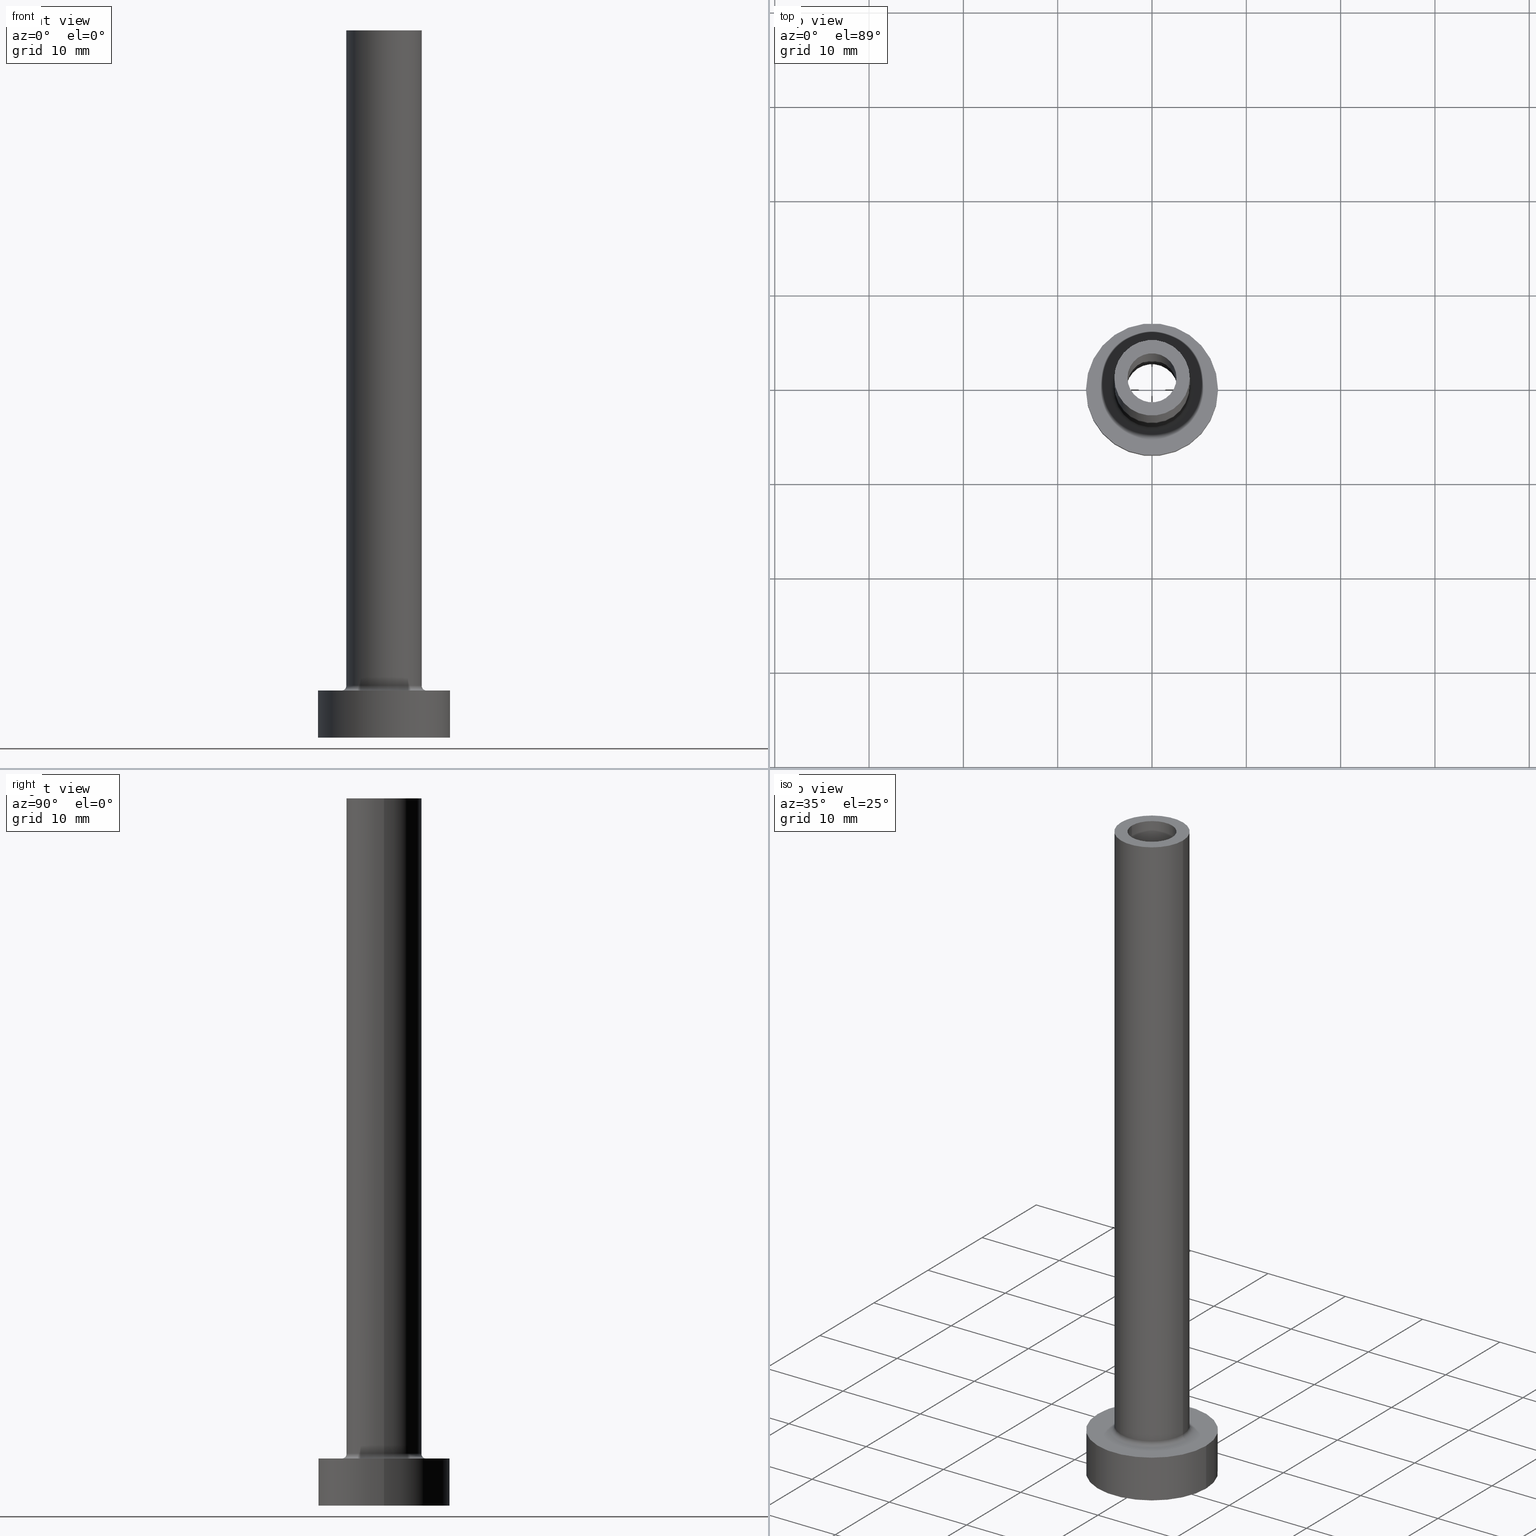
[diagram: canonical four-view strip — front | top / right | iso, engineering-drawing reading convention]
A machine part, canonical four-view strip (front | top / right | iso — engineering-drawing reading convention). The complete STEP part file that produces these views, byte-faithful:
ISO-10303-21;
HEADER;
FILE_DESCRIPTION (( 'STEP AP203' ),
    '1' );
FILE_NAME ('d480.STEP',
    '2023-02-13T10:12:34',
    ( '' ),
    ( '' ),
    'SwSTEP 2.0',
    'SolidWorks 2019',
    '' );
FILE_SCHEMA (( 'CONFIG_CONTROL_DESIGN' ));
ENDSEC;

DATA;
#1 = CARTESIAN_POINT ( 'NONE',  ( 0.000000000000000000, 0.000000000000000000, 75.00000000000001421 ) ) ;
#2 =( NAMED_UNIT ( * ) PLANE_ANGLE_UNIT ( ) SI_UNIT ( $, .RADIAN. ) );
#3 = ADVANCED_FACE ( 'NONE', ( #131, #60 ), #173, .T. ) ;
#4 = PERSON_AND_ORGANIZATION ( #189, #361 ) ;
#5 = CIRCLE ( 'NONE', #337, 2.750000000000000000 ) ;
#6 = DIRECTION ( 'NONE',  ( -0.000000000000000000, -0.000000000000000000, -1.000000000000000000 ) ) ;
#7 = ADVANCED_FACE ( 'NONE', ( #313 ), #453, .F. ) ;
#8 = DIRECTION ( 'NONE',  ( 1.000000000000000000, 0.000000000000000000, 0.000000000000000000 ) ) ;
#9 = ORIENTED_EDGE ( 'NONE', *, *, #304, .T. ) ;
#10 = CYLINDRICAL_SURFACE ( 'NONE', #377, 2.750000000000000000 ) ;
#11 = CIRCLE ( 'NONE', #396, 4.000000000000000000 ) ;
#12 = EDGE_LOOP ( 'NONE', ( #370, #205 ) ) ;
#13 = DIRECTION ( 'NONE',  ( 1.000000000000000000, 0.000000000000000000, 0.000000000000000000 ) ) ;
#14 = DIRECTION ( 'NONE',  ( 1.000000000000000000, 0.000000000000000000, 0.000000000000000000 ) ) ;
#15 = ORIENTED_EDGE ( 'NONE', *, *, #135, .T. ) ;
#16 = CARTESIAN_POINT ( 'NONE',  ( 0.000000000000000000, 0.000000000000000000, 0.000000000000000000 ) ) ;
#17 = CARTESIAN_POINT ( 'NONE',  ( -4.000000000000000000, 0.000000000000000000, 75.00000000000001421 ) ) ;
#18 = EDGE_CURVE ( 'NONE', #26, #166, #73, .T. ) ;
#19 = VERTEX_POINT ( 'NONE', #225 ) ;
#20 = PERSON_AND_ORGANIZATION ( #189, #361 ) ;
#21 = DIRECTION ( 'NONE',  ( -0.000000000000000000, -0.000000000000000000, -1.000000000000000000 ) ) ;
#22 = AXIS2_PLACEMENT_3D ( 'NONE', #460, #39, #188 ) ;
#23 = DATE_AND_TIME ( #202, #41 ) ;
#24 = FACE_OUTER_BOUND ( 'NONE', #235, .T. ) ;
#25 = ORIENTED_EDGE ( 'NONE', *, *, #279, .T. ) ;
#26 = VERTEX_POINT ( 'NONE', #217 ) ;
#27 = PERSON_AND_ORGANIZATION_ROLE ( 'design_supplier' ) ;
#28 = DESIGN_CONTEXT ( 'detailed design', #340, 'design' ) ;
#29 = CIRCLE ( 'NONE', #240, 2.600000000000000089 ) ;
#30 = PRODUCT_DEFINITION_SHAPE ( 'NONE', 'NONE',  #170 ) ;
#31 = ORIENTED_EDGE ( 'NONE', *, *, #130, .T. ) ;
#32 = DIRECTION ( 'NONE',  ( 0.000000000000000000, 0.000000000000000000, 1.000000000000000000 ) ) ;
#33 = DIRECTION ( 'NONE',  ( 0.000000000000000000, 0.000000000000000000, 1.000000000000000000 ) ) ;
#34 = CARTESIAN_POINT ( 'NONE',  ( -7.000000000000000000, 0.000000000000000000, 0.000000000000000000 ) ) ;
#35 = AXIS2_PLACEMENT_3D ( 'NONE', #434, #364, #42 ) ;
#36 = LOCAL_TIME ( 11, 12, 34.00000000000000000, #106 ) ;
#37 = CYLINDRICAL_SURFACE ( 'NONE', #446, 4.000000000000000000 ) ;
#38 = CC_DESIGN_PERSON_AND_ORGANIZATION_ASSIGNMENT ( #132, #349, ( #233 ) ) ;
#39 = DIRECTION ( 'NONE',  ( 0.000000000000000000, 0.000000000000000000, 1.000000000000000000 ) ) ;
#40 = VECTOR ( 'NONE', #409, 1000.000000000000000 ) ;
#41 = LOCAL_TIME ( 11, 12, 34.00000000000000000, #52 ) ;
#42 = DIRECTION ( 'NONE',  ( -1.000000000000000000, 0.000000000000000000, 0.000000000000000000 ) ) ;
#43 = AXIS2_PLACEMENT_3D ( 'NONE', #291, #362, #224 ) ;
#44 = ORIENTED_EDGE ( 'NONE', *, *, #67, .T. ) ;
#45 = PLANE ( 'NONE',  #54 ) ;
#46 = DIRECTION ( 'NONE',  ( 0.000000000000000000, 0.000000000000000000, 1.000000000000000000 ) ) ;
#47 = VECTOR ( 'NONE', #339, 1000.000000000000000 ) ;
#48 = ORIENTED_EDGE ( 'NONE', *, *, #324, .T. ) ;
#49 = DIRECTION ( 'NONE',  ( 0.000000000000000000, 0.000000000000000000, 1.000000000000000000 ) ) ;
#50 = ADVANCED_FACE ( 'NONE', ( #142 ), #262, .T. ) ;
#51 = ORIENTED_EDGE ( 'NONE', *, *, #415, .T. ) ;
#52 = COORDINATED_UNIVERSAL_TIME_OFFSET ( 1, 0, .AHEAD. ) ;
#53 = PLANE ( 'NONE',  #196 ) ;
#54 = AXIS2_PLACEMENT_3D ( 'NONE', #400, #325, #219 ) ;
#55 = EDGE_LOOP ( 'NONE', ( #119, #365, #9, #228 ) ) ;
#56 = APPLICATION_PROTOCOL_DEFINITION ( 'international standard', 'config_control_design', 1994, #340 ) ;
#57 = DIRECTION ( 'NONE',  ( 1.000000000000000000, 0.000000000000000000, 0.000000000000000000 ) ) ;
#58 = AXIS2_PLACEMENT_3D ( 'NONE', #442, #380, #97 ) ;
#59 = EDGE_CURVE ( 'NONE', #382, #26, #254, .T. ) ;
#60 = FACE_OUTER_BOUND ( 'NONE', #272, .T. ) ;
#61 = EDGE_LOOP ( 'NONE', ( #197, #314 ) ) ;
#62 = CC_DESIGN_PERSON_AND_ORGANIZATION_ASSIGNMENT ( #330, #129, ( #388 ) ) ;
#63 = VERTEX_POINT ( 'NONE', #34 ) ;
#64 = DIRECTION ( 'NONE',  ( 0.000000000000000000, 0.000000000000000000, 1.000000000000000000 ) ) ;
#65 = CIRCLE ( 'NONE', #177, 2.750000000000000000 ) ;
#66 = LOCAL_TIME ( 11, 12, 34.00000000000000000, #406 ) ;
#67 = EDGE_CURVE ( 'NONE', #348, #345, #246, .T. ) ;
#68 = ORIENTED_EDGE ( 'NONE', *, *, #288, .T. ) ;
#69 = PERSON_AND_ORGANIZATION ( #189, #361 ) ;
#70 = AXIS2_PLACEMENT_3D ( 'NONE', #99, #381, #77 ) ;
#71 = FACE_OUTER_BOUND ( 'NONE', #309, .T. ) ;
#72 = CARTESIAN_POINT ( 'NONE',  ( 0.000000000000000000, 0.000000000000000000, 5.000000000000000000 ) ) ;
#73 = LINE ( 'NONE', #428, #146 ) ;
#74 = CIRCLE ( 'NONE', #149, 0.5000000000000004441 ) ;
#75 = EDGE_CURVE ( 'NONE', #19, #63, #248, .T. ) ;
#76 = CARTESIAN_POINT ( 'NONE',  ( 0.000000000000000000, 0.000000000000000000, 5.500000000000005329 ) ) ;
#77 = DIRECTION ( 'NONE',  ( -1.000000000000000000, 0.000000000000000000, 0.000000000000000000 ) ) ;
#78 = SHAPE_DEFINITION_REPRESENTATION ( #30, #316 ) ;
#79 =( NAMED_UNIT ( * ) SI_UNIT ( $, .STERADIAN. ) SOLID_ANGLE_UNIT ( ) );
#80 = AXIS2_PLACEMENT_3D ( 'NONE', #322, #148, #435 ) ;
#81 = FACE_OUTER_BOUND ( 'NONE', #154, .T. ) ;
#82 = ADVANCED_FACE ( 'NONE', ( #300 ), #183, .F. ) ;
#83 = ORIENTED_EDGE ( 'NONE', *, *, #304, .F. ) ;
#84 = FACE_OUTER_BOUND ( 'NONE', #405, .T. ) ;
#85 = ORIENTED_EDGE ( 'NONE', *, *, #354, .F. ) ;
#86 = CARTESIAN_POINT ( 'NONE',  ( 4.000000000000000000, 4.898587196589412829E-16, 75.00000000000001421 ) ) ;
#87 = ORIENTED_EDGE ( 'NONE', *, *, #103, .T. ) ;
#88 = ADVANCED_FACE ( 'NONE', ( #297, #290 ), #45, .F. ) ;
#89 = ORIENTED_EDGE ( 'NONE', *, *, #194, .F. ) ;
#90 = PERSON_AND_ORGANIZATION_ROLE ( 'creator' ) ;
#91 = APPROVAL ( #306, 'NEUR�EN�' ) ;
#92 = DIRECTION ( 'NONE',  ( 0.000000000000000000, 0.000000000000000000, 1.000000000000000000 ) ) ;
#93 = DATE_AND_TIME ( #408, #151 ) ;
#94 = CARTESIAN_POINT ( 'NONE',  ( 0.000000000000000000, 0.000000000000000000, 30.00000000000001421 ) ) ;
#95 = ADVANCED_FACE ( 'NONE', ( #195 ), #417, .F. ) ;
#96 = ORIENTED_EDGE ( 'NONE', *, *, #130, .F. ) ;
#97 = DIRECTION ( 'NONE',  ( 1.000000000000000000, 0.000000000000000000, 0.000000000000000000 ) ) ;
#98 = CIRCLE ( 'NONE', #251, 2.750000000000000000 ) ;
#99 = CARTESIAN_POINT ( 'NONE',  ( 0.000000000000000000, 0.000000000000000000, 37.77817459305203585 ) ) ;
#100 = ORIENTED_EDGE ( 'NONE', *, *, #429, .T. ) ;
#101 = DIRECTION ( 'NONE',  ( 0.000000000000000000, 0.000000000000000000, -1.000000000000000000 ) ) ;
#102 = CARTESIAN_POINT ( 'NONE',  ( 0.000000000000000000, 0.000000000000000000, 0.000000000000000000 ) ) ;
#103 = EDGE_CURVE ( 'NONE', #345, #348, #191, .T. ) ;
#104 = CIRCLE ( 'NONE', #295, 4.000000000000000000 ) ;
#105 = ORIENTED_EDGE ( 'NONE', *, *, #204, .T. ) ;
#106 = COORDINATED_UNIVERSAL_TIME_OFFSET ( 1, 0, .AHEAD. ) ;
#107 = CARTESIAN_POINT ( 'NONE',  ( 0.000000000000000000, 0.000000000000000000, 0.000000000000000000 ) ) ;
#108 = DIRECTION ( 'NONE',  ( 0.000000000000000000, 0.000000000000000000, -1.000000000000000000 ) ) ;
#109 = ADVANCED_FACE ( 'NONE', ( #84 ), #37, .T. ) ;
#110 = DIRECTION ( 'NONE',  ( -0.000000000000000000, -0.000000000000000000, -1.000000000000000000 ) ) ;
#111 = DIRECTION ( 'NONE',  ( -1.000000000000000000, 0.000000000000000000, 0.000000000000000000 ) ) ;
#112 = DIRECTION ( 'NONE',  ( 1.000000000000000000, 0.000000000000000000, 0.000000000000000000 ) ) ;
#113 = CLOSED_SHELL ( 'NONE', ( #360, #7, #263, #109, #50, #448, #3, #384, #461, #237, #95, #153, #88, #82 ) ) ;
#114 = COORDINATED_UNIVERSAL_TIME_OFFSET ( 1, 0, .AHEAD. ) ;
#115 = AXIS2_PLACEMENT_3D ( 'NONE', #292, #227, #111 ) ;
#116 = DIRECTION ( 'NONE',  ( -1.000000000000000000, 0.000000000000000000, 0.000000000000000000 ) ) ;
#117 = ORIENTED_EDGE ( 'NONE', *, *, #163, .T. ) ;
#118 = DIRECTION ( 'NONE',  ( 0.000000000000000000, 0.000000000000000000, -1.000000000000000000 ) ) ;
#119 = ORIENTED_EDGE ( 'NONE', *, *, #204, .F. ) ;
#120 = DIRECTION ( 'NONE',  ( 1.000000000000000000, 0.000000000000000000, 0.000000000000000000 ) ) ;
#121 = CC_DESIGN_DATE_AND_TIME_ASSIGNMENT ( #23, #335, ( #170 ) ) ;
#122 = VERTEX_POINT ( 'NONE', #439 ) ;
#123 = DIRECTION ( 'NONE',  ( 1.000000000000000000, 0.000000000000000000, 0.000000000000000000 ) ) ;
#124 = CIRCLE ( 'NONE', #167, 7.000000000000000000 ) ;
#125 = ORIENTED_EDGE ( 'NONE', *, *, #186, .F. ) ;
#126 = APPROVAL_ROLE ( '' ) ;
#127 = CARTESIAN_POINT ( 'NONE',  ( 0.000000000000000000, 0.000000000000000000, 5.000000000000000000 ) ) ;
#128 = DIRECTION ( 'NONE',  ( 0.000000000000000000, 0.000000000000000000, 1.000000000000000000 ) ) ;
#129 = PERSON_AND_ORGANIZATION_ROLE ( 'design_owner' ) ;
#130 = EDGE_CURVE ( 'NONE', #19, #301, #138, .T. ) ;
#131 = FACE_BOUND ( 'NONE', #438, .T. ) ;
#132 = PERSON_AND_ORGANIZATION ( #189, #361 ) ;
#133 = AXIS2_PLACEMENT_3D ( 'NONE', #72, #293, #258 ) ;
#134 = CC_DESIGN_APPROVAL ( #393, ( #233 ) ) ;
#135 = EDGE_CURVE ( 'NONE', #402, #348, #74, .T. ) ;
#136 = ORIENTED_EDGE ( 'NONE', *, *, #415, .F. ) ;
#137 = CALENDAR_DATE ( 2023, 13, 2 ) ;
#138 = CIRCLE ( 'NONE', #133, 7.000000000000000000 ) ;
#139 = CARTESIAN_POINT ( 'NONE',  ( 0.000000000000000000, 0.000000000000000000, 0.000000000000000000 ) ) ;
#140 = DATE_TIME_ROLE ( 'classification_date' ) ;
#141 = EDGE_CURVE ( 'NONE', #26, #382, #328, .T. ) ;
#142 = FACE_OUTER_BOUND ( 'NONE', #55, .T. ) ;
#143 = AXIS2_PLACEMENT_3D ( 'NONE', #102, #318, #422 ) ;
#144 = EDGE_CURVE ( 'NONE', #402, #214, #11, .T. ) ;
#145 = CARTESIAN_POINT ( 'NONE',  ( -2.750000000000000000, 0.000000000000000000, 0.000000000000000000 ) ) ;
#146 = VECTOR ( 'NONE', #430, 1000.000000000000000 ) ;
#147 = DIRECTION ( 'NONE',  ( 1.000000000000000000, 0.000000000000000000, 0.000000000000000000 ) ) ;
#148 = DIRECTION ( 'NONE',  ( 0.000000000000000000, 0.000000000000000000, 1.000000000000000000 ) ) ;
#149 = AXIS2_PLACEMENT_3D ( 'NONE', #172, #352, #118 ) ;
#150 = ORIENTED_EDGE ( 'NONE', *, *, #241, .T. ) ;
#151 = LOCAL_TIME ( 11, 12, 34.00000000000000000, #276 ) ;
#152 = DIRECTION ( 'NONE',  ( -0.000000000000000000, -0.000000000000000000, -1.000000000000000000 ) ) ;
#153 = ADVANCED_FACE ( 'NONE', ( #181 ), #10, .F. ) ;
#154 = EDGE_LOOP ( 'NONE', ( #168, #96, #192, #249 ) ) ;
#155 = DIRECTION ( 'NONE',  ( -1.000000000000000000, 1.224646799147351482E-16, 0.000000000000000000 ) ) ;
#156 = VECTOR ( 'NONE', #152, 1000.000000000000000 ) ;
#157 = EDGE_LOOP ( 'NONE', ( #416, #386, #68, #410 ) ) ;
#158 = PERSON_AND_ORGANIZATION ( #189, #361 ) ;
#159 = ORIENTED_EDGE ( 'NONE', *, *, #279, .F. ) ;
#160 = DIRECTION ( 'NONE',  ( 0.000000000000000000, 0.000000000000000000, 1.000000000000000000 ) ) ;
#161 = ORIENTED_EDGE ( 'NONE', *, *, #135, .F. ) ;
#162 = DIRECTION ( 'NONE',  ( 0.000000000000000000, 0.000000000000000000, 1.000000000000000000 ) ) ;
#163 = EDGE_CURVE ( 'NONE', #122, #390, #221, .T. ) ;
#164 = DIRECTION ( 'NONE',  ( 1.000000000000000000, 0.000000000000000000, 0.000000000000000000 ) ) ;
#165 = DIRECTION ( 'NONE',  ( 1.000000000000000000, 0.000000000000000000, -0.000000000000000000 ) ) ;
#166 = VERTEX_POINT ( 'NONE', #459 ) ;
#167 = AXIS2_PLACEMENT_3D ( 'NONE', #127, #92, #14 ) ;
#168 = ORIENTED_EDGE ( 'NONE', *, *, #223, .F. ) ;
#169 = FACE_OUTER_BOUND ( 'NONE', #375, .T. ) ;
#170 = PRODUCT_DEFINITION ( 'NEZN�M�', '', #265, #28 ) ;
#171 = ORIENTED_EDGE ( 'NONE', *, *, #103, .F. ) ;
#172 = CARTESIAN_POINT ( 'NONE',  ( 4.500000000000000888, 0.000000000000000000, 5.500000000000005329 ) ) ;
#173 = PLANE ( 'NONE',  #431 ) ;
#174 = PERSON_AND_ORGANIZATION ( #189, #361 ) ;
#175 = MANIFOLD_SOLID_BREP ( 'Odebrat vysunut�m4', #113 ) ;
#176 = CARTESIAN_POINT ( 'NONE',  ( 2.750000000000000000, 3.367778697655221012E-16, 0.000000000000000000 ) ) ;
#177 = AXIS2_PLACEMENT_3D ( 'NONE', #139, #289, #216 ) ;
#178 = CARTESIAN_POINT ( 'NONE',  ( 0.000000000000000000, 0.000000000000000000, 5.000000000000000000 ) ) ;
#179 = CYLINDRICAL_SURFACE ( 'NONE', #359, 2.600000000000000089 ) ;
#180 = APPROVAL_PERSON_ORGANIZATION ( #4, #393, #363 ) ;
#181 = FACE_OUTER_BOUND ( 'NONE', #283, .T. ) ;
#182 = APPROVAL_STATUS ( 'not_yet_approved' ) ;
#183 = CYLINDRICAL_SURFACE ( 'NONE', #285, 2.600000000000000089 ) ;
#184 = DATE_AND_TIME ( #190, #414 ) ;
#185 = LINE ( 'NONE', #432, #271 ) ;
#186 = EDGE_CURVE ( 'NONE', #390, #420, #65, .T. ) ;
#187 = CIRCLE ( 'NONE', #369, 2.600000000000000089 ) ;
#188 = DIRECTION ( 'NONE',  ( 1.000000000000000000, 0.000000000000000000, 0.000000000000000000 ) ) ;
#189 = PERSON ( 'NEUR�EN�', 'NEUR�EN�', 'NEUR�EN�', ('NEUR�EN�'), ('NEUR�EN�'), ('NEUR�EN�') ) ;
#190 = CALENDAR_DATE ( 2023, 13, 2 ) ;
#191 = CIRCLE ( 'NONE', #433, 4.500000000000000888 ) ;
#192 = ORIENTED_EDGE ( 'NONE', *, *, #75, .T. ) ;
#193 = DIRECTION ( 'NONE',  ( 1.000000000000000000, 0.000000000000000000, 0.000000000000000000 ) ) ;
#194 = EDGE_CURVE ( 'NONE', #63, #210, #455, .T. ) ;
#195 = FACE_OUTER_BOUND ( 'NONE', #372, .T. ) ;
#196 = AXIS2_PLACEMENT_3D ( 'NONE', #450, #49, #333 ) ;
#197 = ORIENTED_EDGE ( 'NONE', *, *, #59, .F. ) ;
#198 = LINE ( 'NONE', #373, #280 ) ;
#199 = VERTEX_POINT ( 'NONE', #278 ) ;
#200 = DIRECTION ( 'NONE',  ( 1.000000000000000000, 0.000000000000000000, 0.000000000000000000 ) ) ;
#201 = ORIENTED_EDGE ( 'NONE', *, *, #163, .F. ) ;
#202 = CALENDAR_DATE ( 2023, 13, 2 ) ;
#203 = CARTESIAN_POINT ( 'NONE',  ( -4.500000000000000888, 5.510910596163089556E-16, 5.500000000000005329 ) ) ;
#204 = EDGE_CURVE ( 'NONE', #301, #19, #124, .T. ) ;
#205 = ORIENTED_EDGE ( 'NONE', *, *, #367, .T. ) ;
#206 = DIRECTION ( 'NONE',  ( 0.000000000000000000, 0.000000000000000000, 1.000000000000000000 ) ) ;
#207 = APPROVAL_PERSON_ORGANIZATION ( #158, #91, #236 ) ;
#208 = ORIENTED_EDGE ( 'NONE', *, *, #354, .T. ) ;
#209 = CARTESIAN_POINT ( 'NONE',  ( -2.600000000000000089, 0.000000000000000000, 75.00000000000001421 ) ) ;
#210 = VERTEX_POINT ( 'NONE', #454 ) ;
#211 = DIRECTION ( 'NONE',  ( 1.000000000000000000, 0.000000000000000000, 0.000000000000000000 ) ) ;
#212 = CC_DESIGN_PERSON_AND_ORGANIZATION_ASSIGNMENT ( #174, #250, ( #265 ) ) ;
#213 = CIRCLE ( 'NONE', #22, 4.000000000000000000 ) ;
#214 = VERTEX_POINT ( 'NONE', #452 ) ;
#215 = SECURITY_CLASSIFICATION_LEVEL ( 'unclassified' ) ;
#216 = DIRECTION ( 'NONE',  ( 1.000000000000000000, 0.000000000000000000, 0.000000000000000000 ) ) ;
#217 = CARTESIAN_POINT ( 'NONE',  ( 2.600000000000000089, 3.184081677783117698E-16, 75.00000000000001421 ) ) ;
#218 = AXIS2_PLACEMENT_3D ( 'NONE', #1, #267, #112 ) ;
#219 = DIRECTION ( 'NONE',  ( 1.000000000000000000, 0.000000000000000000, -0.000000000000000000 ) ) ;
#220 = AXIS2_PLACEMENT_3D ( 'NONE', #16, #162, #13 ) ;
#221 = LINE ( 'NONE', #389, #387 ) ;
#222 = DIRECTION ( 'NONE',  ( -0.000000000000000000, -0.000000000000000000, -1.000000000000000000 ) ) ;
#223 = EDGE_CURVE ( 'NONE', #301, #210, #198, .T. ) ;
#224 = DIRECTION ( 'NONE',  ( -1.000000000000000000, 0.000000000000000000, 0.000000000000000000 ) ) ;
#225 = CARTESIAN_POINT ( 'NONE',  ( -7.000000000000000000, 0.000000000000000000, 5.000000000000000000 ) ) ;
#226 = AXIS2_PLACEMENT_3D ( 'NONE', #383, #64, #211 ) ;
#227 = DIRECTION ( 'NONE',  ( -0.000000000000000000, -0.000000000000000000, -1.000000000000000000 ) ) ;
#228 = ORIENTED_EDGE ( 'NONE', *, *, #75, .F. ) ;
#229 = CARTESIAN_POINT ( 'NONE',  ( 0.000000000000000000, 0.000000000000000000, 37.77817459305203585 ) ) ;
#230 = ORIENTED_EDGE ( 'NONE', *, *, #332, .T. ) ;
#231 = CALENDAR_DATE ( 2023, 13, 2 ) ;
#232 = CARTESIAN_POINT ( 'NONE',  ( 0.000000000000000000, 0.000000000000000000, 30.00000000000001421 ) ) ;
#233 = SECURITY_CLASSIFICATION ( '', '', #215 ) ;
#234 = CARTESIAN_POINT ( 'NONE',  ( 0.000000000000000000, 0.000000000000000000, 5.500000000000005329 ) ) ;
#235 = EDGE_LOOP ( 'NONE', ( #85, #150, #456, #161 ) ) ;
#236 = APPROVAL_ROLE ( '' ) ;
#237 = ADVANCED_FACE ( 'NONE', ( #307, #376 ), #53, .T. ) ;
#238 = LINE ( 'NONE', #277, #47 ) ;
#239 = ORIENTED_EDGE ( 'NONE', *, *, #241, .F. ) ;
#240 = AXIS2_PLACEMENT_3D ( 'NONE', #303, #46, #120 ) ;
#241 = EDGE_CURVE ( 'NONE', #214, #345, #257, .T. ) ;
#242 = ORIENTED_EDGE ( 'NONE', *, *, #294, .T. ) ;
#243 = DIRECTION ( 'NONE',  ( 1.000000000000000000, 0.000000000000000000, 0.000000000000000000 ) ) ;
#244 = VERTEX_POINT ( 'NONE', #17 ) ;
#245 = PRODUCT_RELATED_PRODUCT_CATEGORY ( 'detail', '', ( #388 ) ) ;
#246 = CIRCLE ( 'NONE', #269, 4.500000000000000888 ) ;
#247 = DIRECTION ( 'NONE',  ( -1.000000000000000000, 0.000000000000000000, 0.000000000000000000 ) ) ;
#248 = LINE ( 'NONE', #385, #156 ) ;
#249 = ORIENTED_EDGE ( 'NONE', *, *, #194, .T. ) ;
#250 = PERSON_AND_ORGANIZATION_ROLE ( 'creator' ) ;
#251 = AXIS2_PLACEMENT_3D ( 'NONE', #404, #268, #57 ) ;
#252 = VERTEX_POINT ( 'NONE', #86 ) ;
#253 = DIRECTION ( 'NONE',  ( -0.000000000000000000, -0.000000000000000000, -1.000000000000000000 ) ) ;
#254 = CIRCLE ( 'NONE', #374, 2.600000000000000089 ) ;
#255 = CARTESIAN_POINT ( 'NONE',  ( 0.000000000000000000, 0.000000000000000000, 75.00000000000001421 ) ) ;
#256 = FACE_OUTER_BOUND ( 'NONE', #350, .T. ) ;
#257 = CIRCLE ( 'NONE', #421, 0.5000000000000004441 ) ;
#258 = DIRECTION ( 'NONE',  ( 1.000000000000000000, 0.000000000000000000, 0.000000000000000000 ) ) ;
#259 = APPROVAL_DATE_TIME ( #184, #393 ) ;
#260 = EDGE_CURVE ( 'NONE', #199, #122, #98, .T. ) ;
#261 = CYLINDRICAL_SURFACE ( 'NONE', #115, 7.000000000000000000 ) ;
#262 = CYLINDRICAL_SURFACE ( 'NONE', #43, 7.000000000000000000 ) ;
#263 = ADVANCED_FACE ( 'NONE', ( #24 ), #264, .F. ) ;
#264 = TOROIDAL_SURFACE ( 'NONE', #436, 4.500000000000000888, 0.5000000000000000000 ) ;
#265 = PRODUCT_DEFINITION_FORMATION_WITH_SPECIFIED_SOURCE ( 'LIBOVOLN�', '', #388, .NOT_KNOWN. ) ;
#266 = ORIENTED_EDGE ( 'NONE', *, *, #59, .T. ) ;
#267 = DIRECTION ( 'NONE',  ( 0.000000000000000000, 0.000000000000000000, 1.000000000000000000 ) ) ;
#268 = DIRECTION ( 'NONE',  ( 0.000000000000000000, 0.000000000000000000, 1.000000000000000000 ) ) ;
#269 = AXIS2_PLACEMENT_3D ( 'NONE', #178, #110, #147 ) ;
#270 = CARTESIAN_POINT ( 'NONE',  ( 4.500000000000000888, 0.000000000000000000, 5.000000000000002665 ) ) ;
#271 = VECTOR ( 'NONE', #222, 1000.000000000000000 ) ;
#272 = EDGE_LOOP ( 'NONE', ( #31, #105 ) ) ;
#273 = PERSON_AND_ORGANIZATION ( #189, #361 ) ;
#274 = EDGE_CURVE ( 'NONE', #244, #214, #238, .T. ) ;
#275 = LINE ( 'NONE', #209, #40 ) ;
#276 = COORDINATED_UNIVERSAL_TIME_OFFSET ( 1, 0, .AHEAD. ) ;
#277 = CARTESIAN_POINT ( 'NONE',  ( -4.000000000000000000, 0.000000000000000000, 75.00000000000001421 ) ) ;
#278 = CARTESIAN_POINT ( 'NONE',  ( -2.750000000000000000, 0.000000000000000000, 30.00000000000001421 ) ) ;
#279 = EDGE_CURVE ( 'NONE', #443, #166, #187, .T. ) ;
#280 = VECTOR ( 'NONE', #21, 1000.000000000000000 ) ;
#281 = UNCERTAINTY_MEASURE_WITH_UNIT (LENGTH_MEASURE( 1.000000000000000082E-05 ), #395, 'distance_accuracy_value', 'NONE');
#282 = CC_DESIGN_DATE_AND_TIME_ASSIGNMENT ( #320, #140, ( #233 ) ) ;
#283 = EDGE_LOOP ( 'NONE', ( #201, #242, #48, #51 ) ) ;
#284 = EDGE_LOOP ( 'NONE', ( #136, #125 ) ) ;
#285 = AXIS2_PLACEMENT_3D ( 'NONE', #355, #108, #426 ) ;
#286 = FACE_BOUND ( 'NONE', #284, .T. ) ;
#287 = ORIENTED_EDGE ( 'NONE', *, *, #367, .F. ) ;
#288 = EDGE_CURVE ( 'NONE', #382, #443, #275, .T. ) ;
#289 = DIRECTION ( 'NONE',  ( -0.000000000000000000, -0.000000000000000000, -1.000000000000000000 ) ) ;
#290 = FACE_OUTER_BOUND ( 'NONE', #440, .T. ) ;
#291 = CARTESIAN_POINT ( 'NONE',  ( 0.000000000000000000, 0.000000000000000000, 5.000000000000000000 ) ) ;
#292 = CARTESIAN_POINT ( 'NONE',  ( 0.000000000000000000, 0.000000000000000000, 5.000000000000000000 ) ) ;
#293 = DIRECTION ( 'NONE',  ( 0.000000000000000000, 0.000000000000000000, 1.000000000000000000 ) ) ;
#294 = EDGE_CURVE ( 'NONE', #122, #199, #308, .T. ) ;
#295 = AXIS2_PLACEMENT_3D ( 'NONE', #234, #371, #243 ) ;
#296 = CYLINDRICAL_SURFACE ( 'NONE', #35, 4.000000000000000000 ) ;
#297 = FACE_BOUND ( 'NONE', #326, .T. ) ;
#298 = CIRCLE ( 'NONE', #58, 7.000000000000000000 ) ;
#299 = APPLICATION_PROTOCOL_DEFINITION ( 'international standard', 'config_control_design', 1994, #449 ) ;
#300 = FACE_OUTER_BOUND ( 'NONE', #157, .T. ) ;
#301 = VERTEX_POINT ( 'NONE', #312 ) ;
#302 = MECHANICAL_CONTEXT ( 'NONE', #449, 'mechanical' ) ;
#303 = CARTESIAN_POINT ( 'NONE',  ( 0.000000000000000000, 0.000000000000000000, 30.00000000000001421 ) ) ;
#304 = EDGE_CURVE ( 'NONE', #210, #63, #298, .T. ) ;
#305 = ORIENTED_EDGE ( 'NONE', *, *, #18, .T. ) ;
#306 = APPROVAL_STATUS ( 'not_yet_approved' ) ;
#307 = FACE_BOUND ( 'NONE', #61, .T. ) ;
#308 = CIRCLE ( 'NONE', #315, 2.750000000000000000 ) ;
#309 = EDGE_LOOP ( 'NONE', ( #266, #305, #159, #399 ) ) ;
#310 = APPROVAL_STATUS ( 'not_yet_approved' ) ;
#311 = ORIENTED_EDGE ( 'NONE', *, *, #274, .F. ) ;
#312 = CARTESIAN_POINT ( 'NONE',  ( 7.000000000000000000, 8.572527594031473190E-16, 5.000000000000000000 ) ) ;
#313 = FACE_OUTER_BOUND ( 'NONE', #403, .T. ) ;
#314 = ORIENTED_EDGE ( 'NONE', *, *, #141, .F. ) ;
#315 = AXIS2_PLACEMENT_3D ( 'NONE', #94, #206, #164 ) ;
#316 = ADVANCED_BREP_SHAPE_REPRESENTATION ( 'd480', ( #175, #220 ), #321 ) ;
#317 = ORIENTED_EDGE ( 'NONE', *, *, #294, .F. ) ;
#318 = DIRECTION ( 'NONE',  ( 0.000000000000000000, 0.000000000000000000, 1.000000000000000000 ) ) ;
#319 = DIRECTION ( 'NONE',  ( 0.000000000000000000, 0.000000000000000000, -1.000000000000000000 ) ) ;
#320 = DATE_AND_TIME ( #137, #36 ) ;
#321 =( GEOMETRIC_REPRESENTATION_CONTEXT ( 3 ) GLOBAL_UNCERTAINTY_ASSIGNED_CONTEXT ( ( #281 ) ) GLOBAL_UNIT_ASSIGNED_CONTEXT ( ( #395, #2, #79 ) ) REPRESENTATION_CONTEXT ( 'NONE', 'WORKASPACE' ) );
#322 = CARTESIAN_POINT ( 'NONE',  ( 0.000000000000000000, 0.000000000000000000, 5.500000000000005329 ) ) ;
#323 = CARTESIAN_POINT ( 'NONE',  ( 4.000000000000000000, 4.898587196589412829E-16, 5.500000000000005329 ) ) ;
#324 = EDGE_CURVE ( 'NONE', #199, #420, #407, .T. ) ;
#325 = DIRECTION ( 'NONE',  ( 0.000000000000000000, 0.000000000000000000, 1.000000000000000000 ) ) ;
#326 = EDGE_LOOP ( 'NONE', ( #25, #230 ) ) ;
#327 = CARTESIAN_POINT ( 'NONE',  ( 0.000000000000000000, 0.000000000000000000, 5.000000000000000000 ) ) ;
#328 = CIRCLE ( 'NONE', #218, 2.600000000000000089 ) ;
#329 = CC_DESIGN_APPROVAL ( #91, ( #170 ) ) ;
#330 = PERSON_AND_ORGANIZATION ( #189, #361 ) ;
#331 = CARTESIAN_POINT ( 'NONE',  ( -4.500000000000000888, 5.510910596163088569E-16, 5.000000000000002665 ) ) ;
#332 = EDGE_CURVE ( 'NONE', #166, #443, #29, .T. ) ;
#333 = DIRECTION ( 'NONE',  ( 1.000000000000000000, 0.000000000000000000, -0.000000000000000000 ) ) ;
#334 = CC_DESIGN_PERSON_AND_ORGANIZATION_ASSIGNMENT ( #273, #90, ( #170 ) ) ;
#335 = DATE_TIME_ROLE ( 'creation_date' ) ;
#336 = CARTESIAN_POINT ( 'NONE',  ( 0.000000000000000000, 0.000000000000000000, 5.500000000000005329 ) ) ;
#337 = AXIS2_PLACEMENT_3D ( 'NONE', #398, #6, #193 ) ;
#338 = ORIENTED_EDGE ( 'NONE', *, *, #260, .F. ) ;
#339 = DIRECTION ( 'NONE',  ( -0.000000000000000000, -0.000000000000000000, -1.000000000000000000 ) ) ;
#340 = APPLICATION_CONTEXT ( 'configuration controlled 3d designs of mechanical parts and assemblies' ) ;
#341 = ORIENTED_EDGE ( 'NONE', *, *, #429, .F. ) ;
#342 = APPROVAL_DATE_TIME ( #93, #356 ) ;
#343 = CC_DESIGN_PERSON_AND_ORGANIZATION_ASSIGNMENT ( #69, #27, ( #265 ) ) ;
#344 = CARTESIAN_POINT ( 'NONE',  ( -2.750000000000000000, 0.000000000000000000, 37.77817459305203585 ) ) ;
#345 = VERTEX_POINT ( 'NONE', #331 ) ;
#346 = CARTESIAN_POINT ( 'NONE',  ( 0.000000000000000000, 0.000000000000000000, 75.00000000000001421 ) ) ;
#347 = CIRCLE ( 'NONE', #226, 4.000000000000000000 ) ;
#348 = VERTEX_POINT ( 'NONE', #270 ) ;
#349 = PERSON_AND_ORGANIZATION_ROLE ( 'classification_officer' ) ;
#350 = EDGE_LOOP ( 'NONE', ( #341, #418, #379, #208 ) ) ;
#351 = CARTESIAN_POINT ( 'NONE',  ( -2.600000000000000089, 0.000000000000000000, 75.00000000000001421 ) ) ;
#352 = DIRECTION ( 'NONE',  ( 0.000000000000000000, -1.000000000000000000, 0.000000000000000000 ) ) ;
#353 = DIRECTION ( 'NONE',  ( 0.000000000000000000, 0.000000000000000000, 1.000000000000000000 ) ) ;
#354 = EDGE_CURVE ( 'NONE', #214, #402, #104, .T. ) ;
#355 = CARTESIAN_POINT ( 'NONE',  ( 0.000000000000000000, 0.000000000000000000, 75.00000000000001421 ) ) ;
#356 = APPROVAL ( #310, 'NEUR�EN�' ) ;
#357 = DIRECTION ( 'NONE',  ( 0.000000000000000000, 0.000000000000000000, -1.000000000000000000 ) ) ;
#358 = CARTESIAN_POINT ( 'NONE',  ( -2.600000000000000089, 0.000000000000000000, 30.00000000000001421 ) ) ;
#359 = AXIS2_PLACEMENT_3D ( 'NONE', #346, #101, #247 ) ;
#360 = ADVANCED_FACE ( 'NONE', ( #71 ), #179, .F. ) ;
#361 = ORGANIZATION ( 'NEUR�EN�', 'NEUR�EN�', '' ) ;
#362 = DIRECTION ( 'NONE',  ( -0.000000000000000000, -0.000000000000000000, -1.000000000000000000 ) ) ;
#363 = APPROVAL_ROLE ( '' ) ;
#364 = DIRECTION ( 'NONE',  ( -0.000000000000000000, -0.000000000000000000, -1.000000000000000000 ) ) ;
#365 = ORIENTED_EDGE ( 'NONE', *, *, #223, .T. ) ;
#366 = ORIENTED_EDGE ( 'NONE', *, *, #186, .T. ) ;
#367 = EDGE_CURVE ( 'NONE', #252, #244, #347, .T. ) ;
#368 = DIRECTION ( 'NONE',  ( 0.000000000000000000, 0.000000000000000000, -1.000000000000000000 ) ) ;
#369 = AXIS2_PLACEMENT_3D ( 'NONE', #232, #411, #200 ) ;
#370 = ORIENTED_EDGE ( 'NONE', *, *, #401, .T. ) ;
#371 = DIRECTION ( 'NONE',  ( 0.000000000000000000, 0.000000000000000000, 1.000000000000000000 ) ) ;
#372 = EDGE_LOOP ( 'NONE', ( #239, #458, #15, #171 ) ) ;
#373 = CARTESIAN_POINT ( 'NONE',  ( 7.000000000000000000, 8.572527594031473190E-16, 5.000000000000000000 ) ) ;
#374 = AXIS2_PLACEMENT_3D ( 'NONE', #394, #353, #425 ) ;
#375 = EDGE_LOOP ( 'NONE', ( #89, #83 ) ) ;
#376 = FACE_OUTER_BOUND ( 'NONE', #12, .T. ) ;
#377 = AXIS2_PLACEMENT_3D ( 'NONE', #229, #319, #392 ) ;
#378 = APPROVAL_PERSON_ORGANIZATION ( #20, #356, #126 ) ;
#379 = ORIENTED_EDGE ( 'NONE', *, *, #274, .T. ) ;
#380 = DIRECTION ( 'NONE',  ( 0.000000000000000000, 0.000000000000000000, 1.000000000000000000 ) ) ;
#381 = DIRECTION ( 'NONE',  ( 0.000000000000000000, 0.000000000000000000, -1.000000000000000000 ) ) ;
#382 = VERTEX_POINT ( 'NONE', #351 ) ;
#383 = CARTESIAN_POINT ( 'NONE',  ( 0.000000000000000000, 0.000000000000000000, 75.00000000000001421 ) ) ;
#384 = ADVANCED_FACE ( 'NONE', ( #286, #169 ), #419, .F. ) ;
#385 = CARTESIAN_POINT ( 'NONE',  ( -7.000000000000000000, 0.000000000000000000, 5.000000000000000000 ) ) ;
#386 = ORIENTED_EDGE ( 'NONE', *, *, #141, .T. ) ;
#387 = VECTOR ( 'NONE', #357, 1000.000000000000000 ) ;
#388 = PRODUCT ( 'd480', 'd480', '', ( #302 ) ) ;
#389 = CARTESIAN_POINT ( 'NONE',  ( 2.750000000000000000, 3.367778697655221012E-16, 37.77817459305203585 ) ) ;
#390 = VERTEX_POINT ( 'NONE', #176 ) ;
#391 = DIRECTION ( 'NONE',  ( 1.000000000000000000, 0.000000000000000000, 0.000000000000000000 ) ) ;
#392 = DIRECTION ( 'NONE',  ( -1.000000000000000000, 0.000000000000000000, 0.000000000000000000 ) ) ;
#393 = APPROVAL ( #182, 'NEUR�EN�' ) ;
#394 = CARTESIAN_POINT ( 'NONE',  ( 0.000000000000000000, 0.000000000000000000, 75.00000000000001421 ) ) ;
#395 =( LENGTH_UNIT ( ) NAMED_UNIT ( * ) SI_UNIT ( .MILLI., .METRE. ) );
#396 = AXIS2_PLACEMENT_3D ( 'NONE', #76, #32, #8 ) ;
#397 = CC_DESIGN_APPROVAL ( #356, ( #265 ) ) ;
#398 = CARTESIAN_POINT ( 'NONE',  ( 0.000000000000000000, 0.000000000000000000, 0.000000000000000000 ) ) ;
#399 = ORIENTED_EDGE ( 'NONE', *, *, #288, .F. ) ;
#400 = CARTESIAN_POINT ( 'NONE',  ( 0.000000000000000000, 0.000000000000000000, 30.00000000000001421 ) ) ;
#401 = EDGE_CURVE ( 'NONE', #244, #252, #213, .T. ) ;
#402 = VERTEX_POINT ( 'NONE', #323 ) ;
#403 = EDGE_LOOP ( 'NONE', ( #413, #117, #366, #457 ) ) ;
#404 = CARTESIAN_POINT ( 'NONE',  ( 0.000000000000000000, 0.000000000000000000, 30.00000000000001421 ) ) ;
#405 = EDGE_LOOP ( 'NONE', ( #287, #100, #447, #311 ) ) ;
#406 = COORDINATED_UNIVERSAL_TIME_OFFSET ( 1, 0, .AHEAD. ) ;
#407 = LINE ( 'NONE', #344, #427 ) ;
#408 = CALENDAR_DATE ( 2023, 13, 2 ) ;
#409 = DIRECTION ( 'NONE',  ( 0.000000000000000000, 0.000000000000000000, -1.000000000000000000 ) ) ;
#410 = ORIENTED_EDGE ( 'NONE', *, *, #332, .F. ) ;
#411 = DIRECTION ( 'NONE',  ( 0.000000000000000000, 0.000000000000000000, 1.000000000000000000 ) ) ;
#412 = AXIS2_PLACEMENT_3D ( 'NONE', #107, #33, #391 ) ;
#413 = ORIENTED_EDGE ( 'NONE', *, *, #260, .T. ) ;
#414 = LOCAL_TIME ( 11, 12, 34.00000000000000000, #114 ) ;
#415 = EDGE_CURVE ( 'NONE', #420, #390, #5, .T. ) ;
#416 = ORIENTED_EDGE ( 'NONE', *, *, #18, .F. ) ;
#417 = TOROIDAL_SURFACE ( 'NONE', #80, 4.500000000000000888, 0.5000000000000000000 ) ;
#418 = ORIENTED_EDGE ( 'NONE', *, *, #401, .F. ) ;
#419 = PLANE ( 'NONE',  #143 ) ;
#420 = VERTEX_POINT ( 'NONE', #145 ) ;
#421 = AXIS2_PLACEMENT_3D ( 'NONE', #203, #445, #155 ) ;
#422 = DIRECTION ( 'NONE',  ( 1.000000000000000000, 0.000000000000000000, -0.000000000000000000 ) ) ;
#423 = DIRECTION ( 'NONE',  ( 1.000000000000000000, 0.000000000000000000, 0.000000000000000000 ) ) ;
#424 = DIRECTION ( 'NONE',  ( -0.000000000000000000, -0.000000000000000000, -1.000000000000000000 ) ) ;
#425 = DIRECTION ( 'NONE',  ( 1.000000000000000000, 0.000000000000000000, 0.000000000000000000 ) ) ;
#426 = DIRECTION ( 'NONE',  ( -1.000000000000000000, 0.000000000000000000, 0.000000000000000000 ) ) ;
#427 = VECTOR ( 'NONE', #368, 1000.000000000000000 ) ;
#428 = CARTESIAN_POINT ( 'NONE',  ( 2.600000000000000089, 3.184081677783117698E-16, 75.00000000000001421 ) ) ;
#429 = EDGE_CURVE ( 'NONE', #252, #402, #185, .T. ) ;
#430 = DIRECTION ( 'NONE',  ( 0.000000000000000000, 0.000000000000000000, -1.000000000000000000 ) ) ;
#431 = AXIS2_PLACEMENT_3D ( 'NONE', #451, #128, #165 ) ;
#432 = CARTESIAN_POINT ( 'NONE',  ( 4.000000000000000000, 4.898587196589412829E-16, 75.00000000000001421 ) ) ;
#433 = AXIS2_PLACEMENT_3D ( 'NONE', #327, #253, #423 ) ;
#434 = CARTESIAN_POINT ( 'NONE',  ( 0.000000000000000000, 0.000000000000000000, 75.00000000000001421 ) ) ;
#435 = DIRECTION ( 'NONE',  ( 1.000000000000000000, 0.000000000000000000, 0.000000000000000000 ) ) ;
#436 = AXIS2_PLACEMENT_3D ( 'NONE', #336, #160, #123 ) ;
#437 = CC_DESIGN_SECURITY_CLASSIFICATION ( #233, ( #265 ) ) ;
#438 = EDGE_LOOP ( 'NONE', ( #44, #87 ) ) ;
#439 = CARTESIAN_POINT ( 'NONE',  ( 2.750000000000000000, 3.367778697655221012E-16, 30.00000000000001421 ) ) ;
#440 = EDGE_LOOP ( 'NONE', ( #338, #317 ) ) ;
#441 = DATE_AND_TIME ( #231, #66 ) ;
#442 = CARTESIAN_POINT ( 'NONE',  ( 0.000000000000000000, 0.000000000000000000, 0.000000000000000000 ) ) ;
#443 = VERTEX_POINT ( 'NONE', #358 ) ;
#444 = APPROVAL_DATE_TIME ( #441, #91 ) ;
#445 = DIRECTION ( 'NONE',  ( 1.224646799147353207E-16, 1.000000000000000000, -0.000000000000000000 ) ) ;
#446 = AXIS2_PLACEMENT_3D ( 'NONE', #255, #424, #116 ) ;
#447 = ORIENTED_EDGE ( 'NONE', *, *, #144, .T. ) ;
#448 = ADVANCED_FACE ( 'NONE', ( #81 ), #261, .T. ) ;
#449 = APPLICATION_CONTEXT ( 'configuration controlled 3d designs of mechanical parts and assemblies' ) ;
#450 = CARTESIAN_POINT ( 'NONE',  ( 0.000000000000000000, 0.000000000000000000, 75.00000000000001421 ) ) ;
#451 = CARTESIAN_POINT ( 'NONE',  ( 0.000000000000000000, 0.000000000000000000, 5.000000000000000000 ) ) ;
#452 = CARTESIAN_POINT ( 'NONE',  ( -4.000000000000000000, 0.000000000000000000, 5.500000000000005329 ) ) ;
#453 = CYLINDRICAL_SURFACE ( 'NONE', #70, 2.750000000000000000 ) ;
#454 = CARTESIAN_POINT ( 'NONE',  ( 7.000000000000000000, 8.572527594031473190E-16, 0.000000000000000000 ) ) ;
#455 = CIRCLE ( 'NONE', #412, 7.000000000000000000 ) ;
#456 = ORIENTED_EDGE ( 'NONE', *, *, #67, .F. ) ;
#457 = ORIENTED_EDGE ( 'NONE', *, *, #324, .F. ) ;
#458 = ORIENTED_EDGE ( 'NONE', *, *, #144, .F. ) ;
#459 = CARTESIAN_POINT ( 'NONE',  ( 2.600000000000000089, 3.184081677783117698E-16, 30.00000000000001421 ) ) ;
#460 = CARTESIAN_POINT ( 'NONE',  ( 0.000000000000000000, 0.000000000000000000, 75.00000000000001421 ) ) ;
#461 = ADVANCED_FACE ( 'NONE', ( #256 ), #296, .T. ) ;
ENDSEC;
END-ISO-10303-21;
